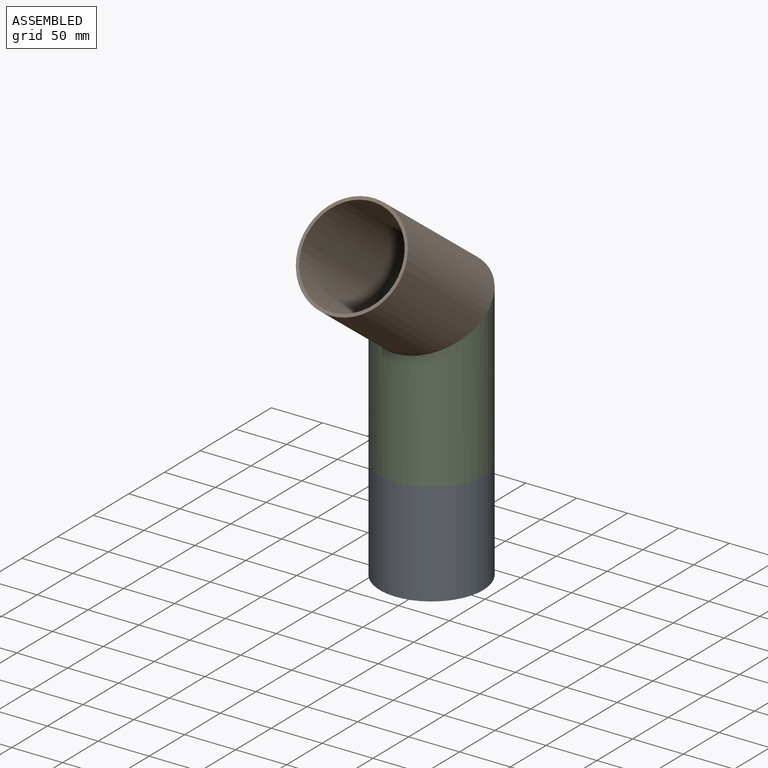
[diagram: assembled view]
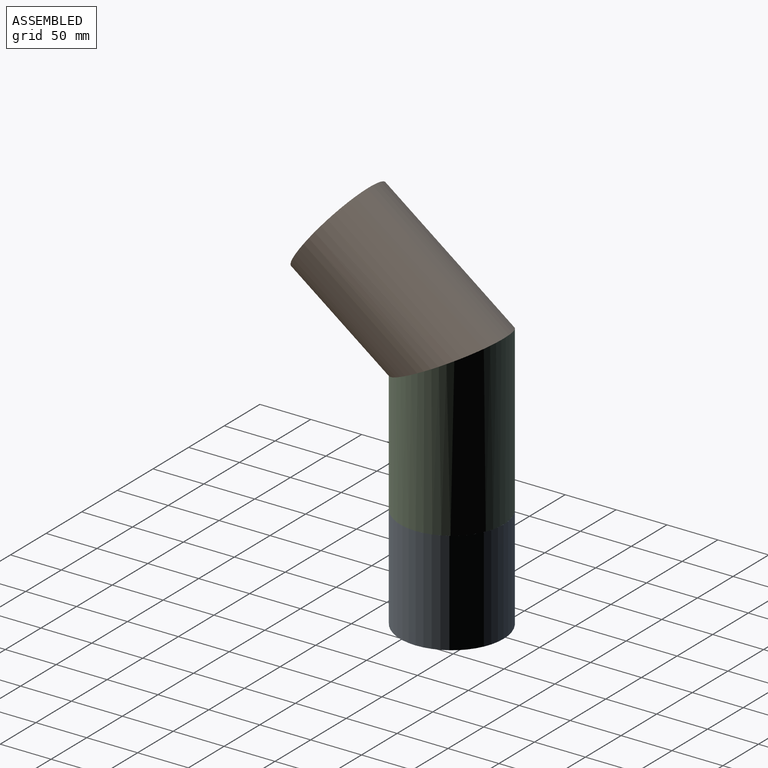
[diagram: assembled view, second angle]
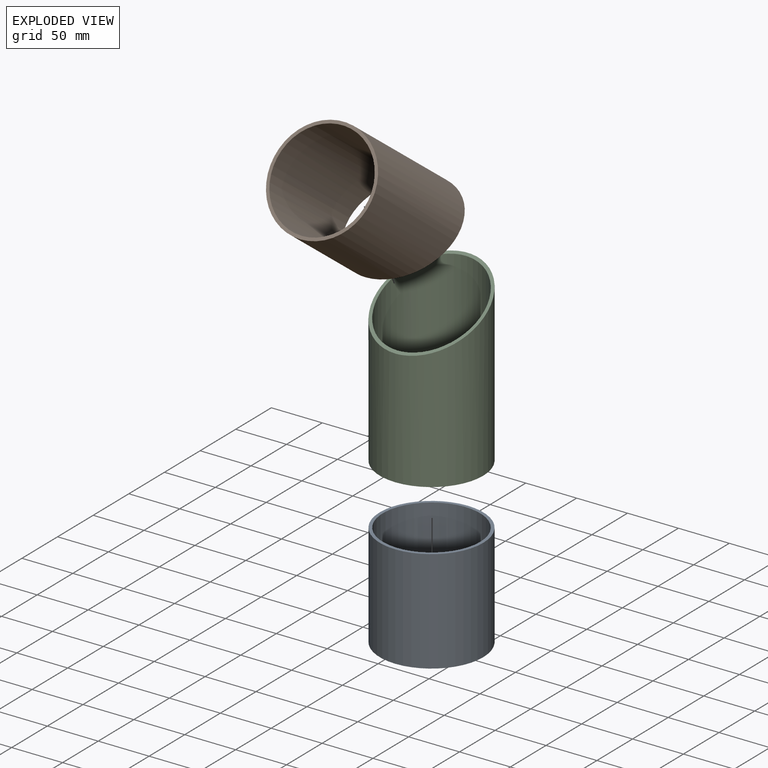
[diagram: exploded view]
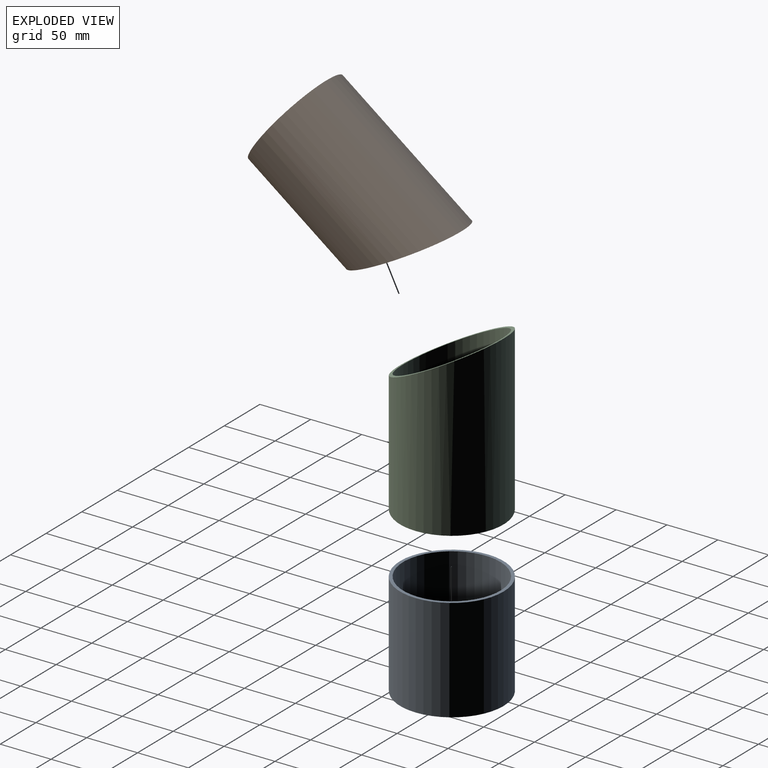
[diagram: exploded view, second angle]
ASSEMBLY  parts=3 mates=2
PART A: 4 faces, bbox 101.6x101.6x101.6 mm
  f0: cylinder r=47.75mm len=101.6mm, axis (0,0,-1), area 30483.5mm2, adj f2,f3
  f1: cylinder r=50.8mm len=101.6mm, axis (0,0,-1), area 32429.3mm2, adj f2,f3
  f2: plane 101.6x101.6mm, normal (0,0,1), area 943.7mm2, adj f0,f1
  f3: plane 101.6x101.6mm, normal (0,0,-1), area 943.7mm2, adj f0,f1
PART B: 4 faces, bbox 101.6x101.6x165.4 mm
  f0: cylinder r=50.8mm len=165.45mm, axis (0,0,-1), area 44590.1mm2, adj f2,f3
  f1: cylinder r=47.75mm len=163.9mm, axis (0,0,-1), area 41914.7mm2, adj f2,f3
  f2: plane 101.6x101.6mm, normal (0,0,-1), area 943.7mm2, adj f0,f1
  f3: plane 101.6x101.6mm, normal (0,-0.45,0.89), area 1055.1mm2, adj f0,f1
PART C: same geometry as B
PLACE A t=(-30.65,47.33,-29.46)mm fixed
PLACE B rot(axis=(0,-0.89,-0.45),180deg) t=(-30.65,-64.43,295.66)mm
PLACE C t=(-30.65,47.33,72.14)mm
MATE fastened B.f3 <-> C.f3  axis (0,0.45,-0.89) through (-30.65,47.33,211.84)mm
MATE fastened A.f1 <-> C.f0  axis (0,0,1) through (-30.65,47.33,72.14)mm
